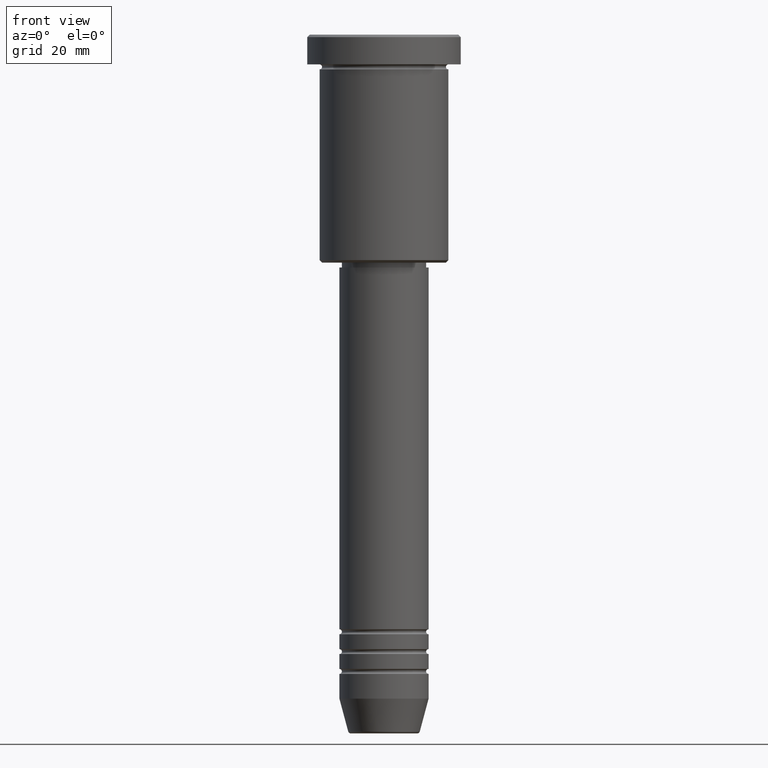
[diagram: clean part render]
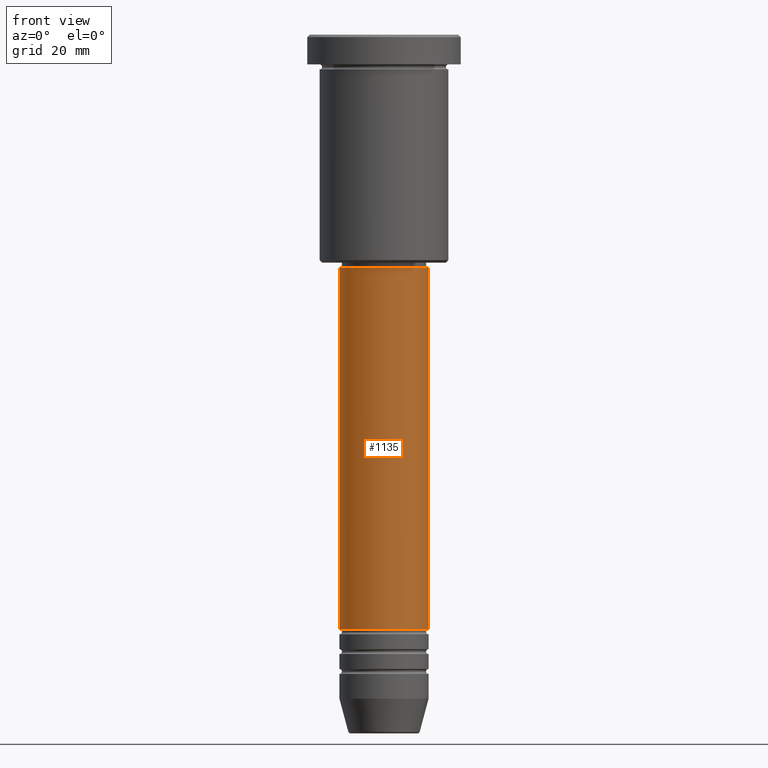
[diagram: same view with one face highlighted and labeled with its STEP entity id]
A machine part, front view. The second image highlights one B-rep face of the part: STEP entity #1135.
In plain terms, the highlighted cylindrical surface (partial cylindrical patch) has radius 9 mm, axis along (-0, -0, 1).
Its self-contained STEP definition (entity closure, byte-faithful):
#31 = ORIENTED_EDGE ( 'NONE', *, *, #54, .T. ) ;
#33 = CIRCLE ( 'NONE', #955, 9.000000000000001776 ) ;
#51 = DIRECTION ( 'NONE',  ( 1.000000000000000000, 0.000000000000000000, 0.000000000000000000 ) ) ;
#54 = EDGE_CURVE ( 'NONE', #791, #1065, #33, .T. ) ;
#57 = AXIS2_PLACEMENT_3D ( 'NONE', #772, #1138, #872 ) ;
#72 = DIRECTION ( 'NONE',  ( 1.000000000000000000, 0.000000000000000000, 0.000000000000000000 ) ) ;
#113 = CARTESIAN_POINT ( 'NONE',  ( -8.999999999999998224, 1.102182119232617714E-15, -46.99999999999999289 ) ) ;
#130 = EDGE_CURVE ( 'NONE', #1065, #1036, #429, .T. ) ;
#173 = CARTESIAN_POINT ( 'NONE',  ( -9.000000000000000000, 1.102182119232617714E-15, 0.000000000000000000 ) ) ;
#244 = DIRECTION ( 'NONE',  ( -0.000000000000000000, -0.000000000000000000, 1.000000000000000000 ) ) ;
#251 = CARTESIAN_POINT ( 'NONE',  ( 0.000000000000000000, 0.000000000000000000, -119.9999999999999005 ) ) ;
#261 = VECTOR ( 'NONE', #546, 1000.000000000000000 ) ;
#327 = ORIENTED_EDGE ( 'NONE', *, *, #1060, .F. ) ;
#407 = CYLINDRICAL_SURFACE ( 'NONE', #57, 9.000000000000000000 ) ;
#429 = LINE ( 'NONE', #1167, #261 ) ;
#433 = EDGE_LOOP ( 'NONE', ( #1171, #31, #709, #327 ) ) ;
#453 = DIRECTION ( 'NONE',  ( -0.000000000000000000, -0.000000000000000000, 1.000000000000000000 ) ) ;
#463 = CIRCLE ( 'NONE', #1127, 8.999999999999998224 ) ;
#498 = CARTESIAN_POINT ( 'NONE',  ( 0.000000000000000000, 0.000000000000000000, -46.99999999999999289 ) ) ;
#546 = DIRECTION ( 'NONE',  ( -0.000000000000000000, -0.000000000000000000, 1.000000000000000000 ) ) ;
#603 = VERTEX_POINT ( 'NONE', #113 ) ;
#632 = LINE ( 'NONE', #173, #1002 ) ;
#709 = ORIENTED_EDGE ( 'NONE', *, *, #130, .T. ) ;
#766 = CARTESIAN_POINT ( 'NONE',  ( 8.999999999999998224, 0.000000000000000000, -46.99999999999999289 ) ) ;
#772 = CARTESIAN_POINT ( 'NONE',  ( 0.000000000000000000, 0.000000000000000000, 0.000000000000000000 ) ) ;
#777 = FACE_OUTER_BOUND ( 'NONE', #433, .T. ) ;
#791 = VERTEX_POINT ( 'NONE', #856 ) ;
#856 = CARTESIAN_POINT ( 'NONE',  ( -9.000000000000001776, 1.102182119232617911E-15, -119.9999999999999005 ) ) ;
#872 = DIRECTION ( 'NONE',  ( 1.000000000000000000, 0.000000000000000000, 0.000000000000000000 ) ) ;
#887 = CARTESIAN_POINT ( 'NONE',  ( 9.000000000000001776, 0.000000000000000000, -119.9999999999999005 ) ) ;
#955 = AXIS2_PLACEMENT_3D ( 'NONE', #251, #244, #72 ) ;
#983 = DIRECTION ( 'NONE',  ( -0.000000000000000000, -0.000000000000000000, 1.000000000000000000 ) ) ;
#986 = EDGE_CURVE ( 'NONE', #791, #603, #632, .T. ) ;
#1002 = VECTOR ( 'NONE', #453, 1000.000000000000000 ) ;
#1036 = VERTEX_POINT ( 'NONE', #766 ) ;
#1060 = EDGE_CURVE ( 'NONE', #603, #1036, #463, .T. ) ;
#1065 = VERTEX_POINT ( 'NONE', #887 ) ;
#1127 = AXIS2_PLACEMENT_3D ( 'NONE', #498, #983, #51 ) ;
#1135 = ADVANCED_FACE ( 'NONE', ( #777 ), #407, .T. ) ;
#1138 = DIRECTION ( 'NONE',  ( -0.000000000000000000, -0.000000000000000000, 1.000000000000000000 ) ) ;
#1167 = CARTESIAN_POINT ( 'NONE',  ( 9.000000000000000000, 0.000000000000000000, 0.000000000000000000 ) ) ;
#1171 = ORIENTED_EDGE ( 'NONE', *, *, #986, .F. ) ;